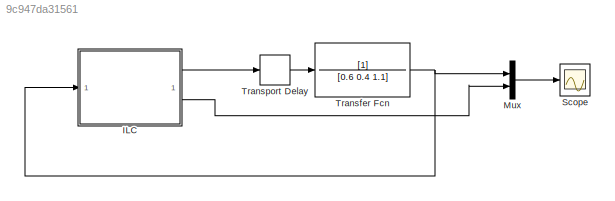
MODEL mdl_9c947da31561
KIND model
CONFIG AbsTol = auto
CONFIG EnableMultiTasking = on
CONFIG FixedStep = auto
CONFIG MaxStep = auto
CONFIG MinStep = auto
CONFIG RelTol = 1e-3
CONFIG SampleTimeConstraint = Unconstrained
CONFIG SolverName = ode45
CONFIG StartTime = 0.0
CONFIG StopTime = 2000
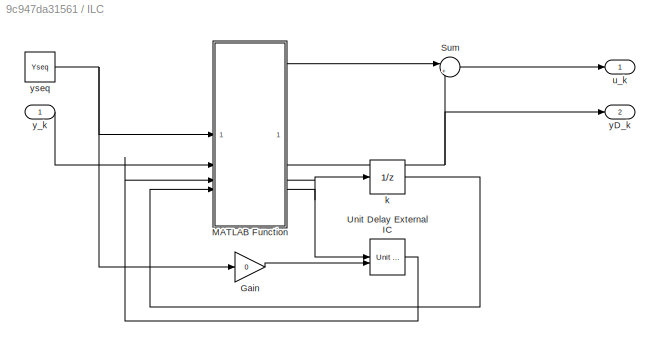
BLOCK [SubSystem] ILC
  Description = Iterative Learning Control
  SystemSampleTime = dt
  TreatAsAtomicUnit = on
BLOCK [Gain] ILC/Gain
  Gain = 0
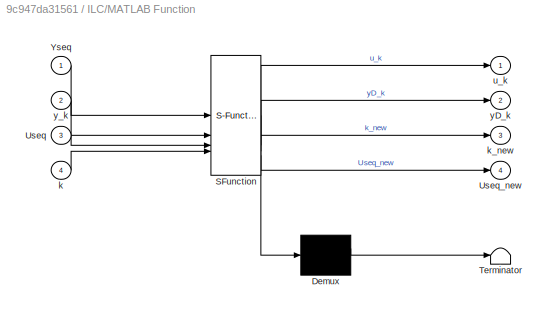
BLOCK [SubSystem] ILC/MATLAB Function
  ErrorFcn = Stateflow.Translate.translate
  PermitHierarchicalResolution = ExplicitOnly
  SFBlockType = MATLAB Function
  TreatAsAtomicUnit = on
BLOCK [Demux] ILC/MATLAB Function/ Demux 
  Outputs = 1
BLOCK [S-Function] ILC/MATLAB Function/ SFunction 
  EnableBusSupport = off
  FunctionName = sf_sfun
  Parameters = gamma
  PortCounts = [4 5]
  SFcnIsStateOwnerBlock = off
  SFunctionDeploymentMode = off
  Tag = Stateflow S-Function 2
BLOCK [Terminator] ILC/MATLAB Function/ Terminator 
BLOCK [Inport] ILC/MATLAB Function/Useq
  Port = 3
BLOCK [Outport] ILC/MATLAB Function/Useq_new
  Port = 4
BLOCK [Inport] ILC/MATLAB Function/Yseq
BLOCK [Inport] ILC/MATLAB Function/k
  Port = 4
BLOCK [Outport] ILC/MATLAB Function/k_new
  Port = 3
BLOCK [Outport] ILC/MATLAB Function/u_k
BLOCK [Outport] ILC/MATLAB Function/yD_k
  Port = 2
BLOCK [Inport] ILC/MATLAB Function/y_k
  Port = 2
BLOCK [Sum] ILC/Sum
  Inputs = |++
BLOCK [Reference] ILC/Unit Delay External IC  REF=simulink_need_slupdate/Unit Delay
External IC
  SourceBlock = simulink_need_slupdate/Unit Delay\nExternal IC
  SourceType = Unit Delay External Initial Condition
BLOCK [UnitDelay] ILC/k
  HasFrameUpgradeWarning = on
  InitialCondition = 1
  SampleTime = -1
BLOCK [Outport] ILC/u_k
BLOCK [Outport] ILC/yD_k
  Port = 2
BLOCK [Inport] ILC/y_k
BLOCK [Constant] ILC/yseq
  Value = Yseq
BLOCK [Mux] Mux
  DisplayOption = bar
  Inputs = 2
BLOCK [Scope] Scope
  Floating = off
  NumInputPorts = 1
  ScopeSpecificationString = Simulink.scopes.TimeScopeBlockCfg('CurrentConfiguration', extmgr.ConfigurationSet(extmgr.Configuration('Core','General UI',true),extmgr.Configuration('Core','Source UI',true),extmgr.Configuration('Sources','WiredSimulink',true,'DataLoggingSaveFormat','StructureWithTime','DataLoggingDecimation','1','DataLoggingDecimateData',true),extmgr.Configuration('Visuals','Time Domain',true,'SerializedDisplays...<+1731ch>
BLOCK [TransferFcn] Transfer Fcn
  Denominator = [0.6 0.4 1.1]
BLOCK [TransportDelay] Transport Delay
  DelayTime = 0.3
LINE ILC/Gain:1 -> ILC/Unit Delay External IC:2
LINE ILC/MATLAB Function:1 -> ILC/Sum:1
NET ILC/MATLAB Function:2 -> ILC/Sum:2, ILC/yD_k:1
LINE ILC/MATLAB Function:3 -> ILC/k:1
LINE ILC/MATLAB Function:4 -> ILC/Unit Delay External IC:1
LINE ILC/Sum:1 -> ILC/u_k:1
LINE ILC/Unit Delay External IC:1 -> ILC/MATLAB Function:3
LINE ILC/k:1 -> ILC/MATLAB Function:4
LINE ILC/y_k:1 -> ILC/MATLAB Function:2
NET ILC/yseq:1 -> ILC/Gain:1, ILC/MATLAB Function:1
LINE ILC:1 -> Transport Delay:1
LINE ILC:2 -> Mux:2
LINE Mux:1 -> Scope:1
NET Transfer Fcn:1 -> ILC:1, Mux:1
LINE Transport Delay:1 -> Transfer Fcn:1
note: NET lines group one-source signal fan-out (src -> all destinations, sorted); 1:1 wires keep LINE
CHART ILC/MATLAB Function states=1 transitions=1
  STATE_LABEL 'eML_blk_kernel()'
  STATE_LABEL "SCRIPT:\nfunction [u_k,yD_k,k_new,Useq_new] = fcn(Yseq,y_k,Useq,k,gamma)\n%#codegen\n\n% number of elements in sequence\n\nNseq = numel(Yseq);\n\n% counter\nk_new = k+1;\n% reset if we've been round the sequence\nif k_new>Nseq,\n    k_new=1;\nend\n\n% extract current demand signal\nyD_k = Yseq(k);\n\n% and the current control\nu_k = Useq(k);\n\n% form the error\ne_k = yD_k - y_k;\n\n% copy the control sequence over\nUseq_...<+166ch>"
CHART  states=0 transitions=0
